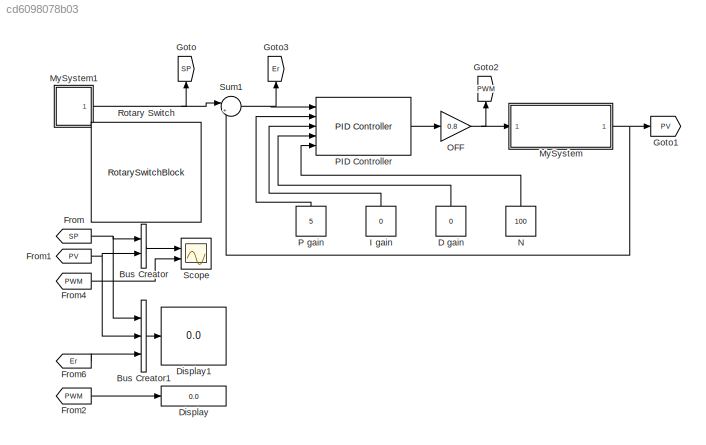
MODEL slx_cd6098078b03
KIND model
CONFIG AbsTol = auto
CONFIG EnableMultiTasking = on
CONFIG FixedStep = Ts
CONFIG InitFcn = Ts=0.025;\nMAX = 110;\nMIN = 0;
CONFIG MaxStep = auto
CONFIG MinStep = auto
CONFIG RelTol = 1e-3
CONFIG SampleTimeConstraint = Unconstrained
CONFIG Solver = ode5
CONFIG SolverName = ode5
CONFIG StartTime = 0.0
CONFIG StopTime = inf
BLOCK [BusCreator] Bus Creator
  DisplayOption = bar
  InheritFromInputs = on
  Inputs = 2
  Ports = [2, 1]
BLOCK [BusCreator] Bus Creator1
  DisplayOption = bar
  InheritFromInputs = on
  Inputs = 3
  Ports = [3, 1]
BLOCK [Constant] D gain
  SampleTime = Ts
  Value = 0
BLOCK [Display] Display
  Decimation = 1
  Ports = [1]
BLOCK [Display] Display1
  Decimation = 1
  Ports = [1]
BLOCK [From] From
  GotoTag = SP
BLOCK [From] From1
  GotoTag = PV
BLOCK [From] From2
  GotoTag = PWM
BLOCK [From] From4
  GotoTag = PWM
BLOCK [From] From6
  GotoTag = Er
BLOCK [Goto] Goto
  GotoTag = SP
BLOCK [Goto] Goto1
  GotoTag = PV
BLOCK [Goto] Goto2
  GotoTag = PWM
BLOCK [Goto] Goto3
  GotoTag = Er
BLOCK [Constant] I gain
  SampleTime = Ts
  Value = 0
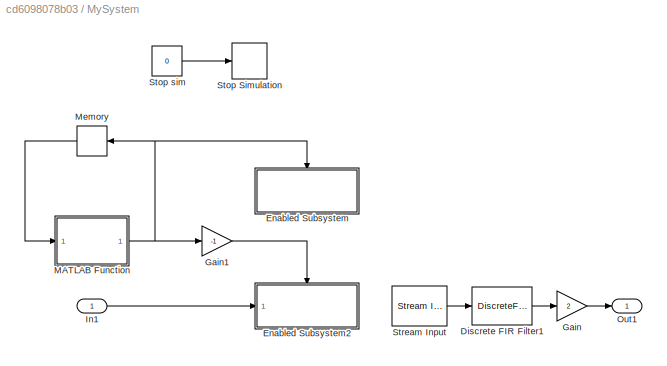
BLOCK [SubSystem] MySystem
  Description = sasd
  Ports = [1, 1]
  RequestExecContextInheritance = off
  ShowPortLabels = none
BLOCK [DiscreteFir] MySystem/Discrete FIR Filter1
  FilterStructure = Direct form symmetric
  InputPortMap = u0
  OutputPortMap = o0
  Ports = [1, 1]
  SampleTime = Ts
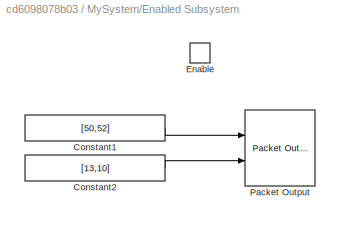
BLOCK [SubSystem] MySystem/Enabled Subsystem
  Ports = [0, 0, 1]
  RequestExecContextInheritance = off
  TreatAsAtomicUnit = on
BLOCK [Constant] MySystem/Enabled Subsystem/Constant1
  Value = [50,52]
BLOCK [Constant] MySystem/Enabled Subsystem/Constant2
  Value = [13,10]
BLOCK [EnablePort] MySystem/Enabled Subsystem/Enable
  Ports = []
BLOCK [Reference] MySystem/Enabled Subsystem/Packet Output  REF=sldrtlib/Packet Output
  AttributesFormatString = Serial Port [5]
  Ports = [2]
  SourceBlock = sldrtlib/Packet Output
  SourceProductBaseCode = WT
  SourceProductName = Simulink Desktop Real-Time
  SourceType = Simulink Desktop Real-Time Packet Output
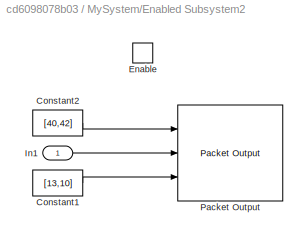
BLOCK [SubSystem] MySystem/Enabled Subsystem2
  Ports = [1, 0, 1]
  RequestExecContextInheritance = off
  TreatAsAtomicUnit = on
BLOCK [Constant] MySystem/Enabled Subsystem2/Constant1
  Value = [13,10]
BLOCK [Constant] MySystem/Enabled Subsystem2/Constant2
  Value = [40,42]
BLOCK [EnablePort] MySystem/Enabled Subsystem2/Enable
  Ports = []
BLOCK [Inport] MySystem/Enabled Subsystem2/In1
  IconDisplay = Port number
BLOCK [Reference] MySystem/Enabled Subsystem2/Packet Output  REF=sldrtlib/Packet Output
  AttributesFormatString = Serial Port [5]
  Ports = [3]
  SourceBlock = sldrtlib/Packet Output
  SourceProductBaseCode = WT
  SourceProductName = Simulink Desktop Real-Time
  SourceType = Simulink Desktop Real-Time Packet Output
BLOCK [Gain] MySystem/Gain
  Gain = 2
  OutDataTypeStr = Inherit: Inherit via internal rule
  ParamDataTypeStr = Inherit: Inherit via internal rule
  SaturateOnIntegerOverflow = off
BLOCK [Gain] MySystem/Gain1
  Gain = -1
  OutDataTypeStr = Inherit: Inherit via internal rule
  ParamDataTypeStr = Inherit: Inherit via internal rule
  SaturateOnIntegerOverflow = off
BLOCK [Inport] MySystem/In1
  IconDisplay = Port number
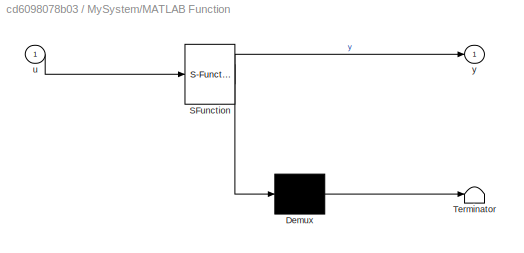
BLOCK [SubSystem] MySystem/MATLAB Function
  ErrorFcn = Stateflow.Translate.translate
  PermitHierarchicalResolution = ExplicitOnly
  Ports = [1, 1]
  RequestExecContextInheritance = off
  SFBlockType = MATLAB Function
  TreatAsAtomicUnit = on
BLOCK [Demux] MySystem/MATLAB Function/ Demux 
  Outputs = 1
  Ports = [1, 1]
BLOCK [S-Function] MySystem/MATLAB Function/ SFunction 
  EnableBusSupport = on
  FunctionName = sf_sfun
  PortCounts = [1 2]
  Ports = [1, 2]
  SFcnIsStateOwnerBlock = off
  SFunctionDeploymentMode = off
  Tag = Stateflow S-Function AeroPendulum 2
BLOCK [Terminator] MySystem/MATLAB Function/ Terminator 
BLOCK [Inport] MySystem/MATLAB Function/u
  IconDisplay = Port number
BLOCK [Outport] MySystem/MATLAB Function/y
  IconDisplay = Port number
BLOCK [Memory] MySystem/Memory
  InitialCondition = 20
BLOCK [Outport] MySystem/Out1
  IconDisplay = Port number
BLOCK [Stop] MySystem/Stop Simulation
BLOCK [Constant] MySystem/Stop sim
  Value = 0
BLOCK [Reference] MySystem/Stream Input  REF=sldrtlib/Stream Input
  AttributesFormatString = Serial Port [5]
  Ports = [0, 1]
  SourceBlock = sldrtlib/Stream Input
  SourceProductBaseCode = WT
  SourceProductName = Simulink Desktop Real-Time
  SourceType = Simulink Desktop Real-Time Stream Input
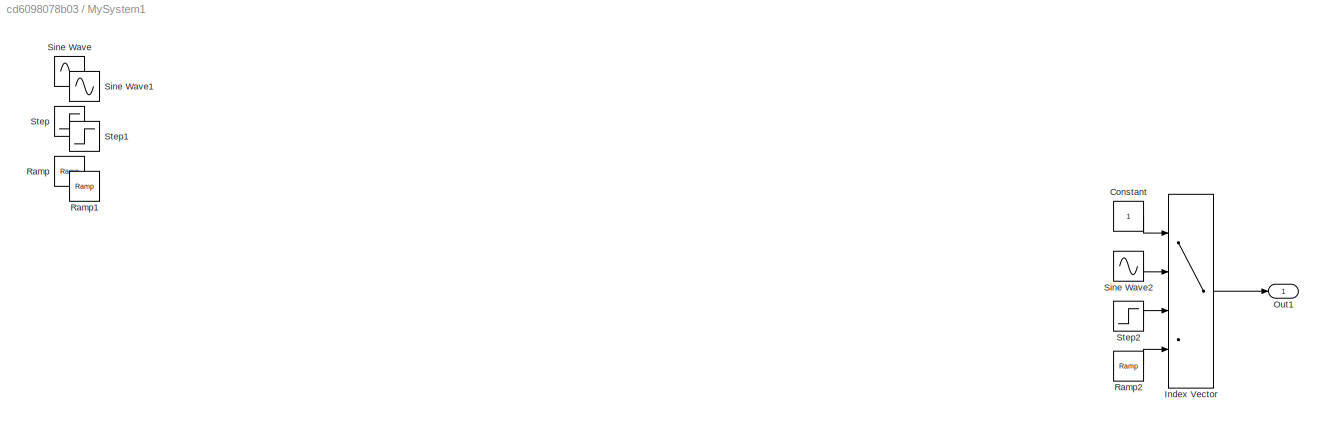
BLOCK [SubSystem] MySystem1
  Description = sasd
  Ports = [0, 1]
  RequestExecContextInheritance = off
  ShowPortLabels = none
BLOCK [Constant] MySystem1/Constant
BLOCK [MultiPortSwitch] MySystem1/Index Vector
  DataPortOrder = Zero-based contiguous
  InputSameDT = off
  Ports = [4, 1]
  SaturateOnIntegerOverflow = off
  zeroidx = on
BLOCK [Outport] MySystem1/Out1
  IconDisplay = Port number
BLOCK [Reference] MySystem1/Ramp  REF=simulink/Sources/Ramp
  Ports = [0, 1]
  SourceBlock = simulink/Sources/Ramp
  SourceProductBaseCode = SL
  SourceProductName = Simulink
  SourceType = Ramp
BLOCK [Reference] MySystem1/Ramp1  REF=simulink/Sources/Ramp
  Ports = [0, 1]
  SourceBlock = simulink/Sources/Ramp
  SourceProductBaseCode = SL
  SourceProductName = Simulink
  SourceType = Ramp
BLOCK [Reference] MySystem1/Ramp2  REF=simulink/Sources/Ramp
  Ports = [0, 1]
  SourceBlock = simulink/Sources/Ramp
  SourceProductBaseCode = SL
  SourceProductName = Simulink
  SourceType = Ramp
BLOCK [Sin] MySystem1/Sine Wave
  Amplitude = 10
  Bias = 45
  Frequency = 0.5
  Ports = [0, 1]
  SampleTime = 0
BLOCK [Sin] MySystem1/Sine Wave1
  Amplitude = 10
  Bias = 45
  Frequency = 0.5
  Ports = [0, 1]
  SampleTime = 0
BLOCK [Sin] MySystem1/Sine Wave2
  Amplitude = 10
  Bias = 45
  Frequency = 0.5
  Ports = [0, 1]
  SampleTime = 0
BLOCK [Step] MySystem1/Step
  SampleTime = 0
BLOCK [Step] MySystem1/Step1
  SampleTime = 0
BLOCK [Step] MySystem1/Step2
  SampleTime = 0
BLOCK [Constant] N
  SampleTime = Ts
  Value = 100
BLOCK [Gain] OFF
  Gain = 0.8
  OutDataTypeStr = double
  ParamDataTypeStr = Inherit: Inherit via internal rule
  SaturateOnIntegerOverflow = off
BLOCK [Constant] P gain
  SampleTime = Ts
  Value = 5
BLOCK [Reference] PID Controller  REF=simulink/Continuous/PID Controller
  Ports = [5, 1]
  SourceBlock = simulink/Continuous/PID Controller
  SourceProductBaseCode = SL
  SourceProductName = Simulink
  SourceType = PID 1dof
BLOCK [RotarySwitchBlock] Rotary Switch
  LabelPosition = Hide
BLOCK [Scope] Scope
  Floating = off
  NumInputPorts = 2
  Ports = [2]
  ScopeSpecificationString = Simulink.scopes.TimeScopeBlockCfg('CurrentConfiguration', extmgr.ConfigurationSet(extmgr.Configuration('Core','General UI',true),extmgr.Configuration('Core','Source UI',true),extmgr.Configuration('Sources','WiredSimulink',true,'DataLoggingSaveFormat','StructureWithTime','DataLoggingDecimation','1','DataLoggingDecimateData',true),extmgr.Configuration('Visuals','Time Domain',true,'SerializedDisplays...<+2271ch>
BLOCK [Sum] Sum1
  IconShape = round
  InputSameDT = off
  Inputs = |+-
  OutDataTypeStr = Inherit: Inherit via internal rule
  Ports = [2, 1]
  SaturateOnIntegerOverflow = off
LINE Bus Creator1:1 -> Display1:1
LINE Bus Creator:1 -> Scope:1
LINE D gain:1 -> PID Controller:4
NET From1:1 -> Bus Creator1:2, Bus Creator:2
LINE From2:1 -> Display:1
LINE From4:1 -> Scope:2
LINE From6:1 -> Bus Creator1:3
NET From:1 -> Bus Creator1:1, Bus Creator:1
LINE I gain:1 -> PID Controller:3
LINE MySystem/Discrete FIR Filter1:1 -> MySystem/Gain:1
LINE MySystem/Enabled Subsystem/Constant1:1 -> MySystem/Enabled Subsystem/Packet Output:1
LINE MySystem/Enabled Subsystem/Constant2:1 -> MySystem/Enabled Subsystem/Packet Output:2
LINE MySystem/Enabled Subsystem2/Constant1:1 -> MySystem/Enabled Subsystem2/Packet Output:3
LINE MySystem/Enabled Subsystem2/Constant2:1 -> MySystem/Enabled Subsystem2/Packet Output:1
LINE MySystem/Enabled Subsystem2/In1:1 -> MySystem/Enabled Subsystem2/Packet Output:2
LINE MySystem/Gain1:1 -> MySystem/Enabled Subsystem2:enable
LINE MySystem/Gain:1 -> MySystem/Out1:1
LINE MySystem/In1:1 -> MySystem/Enabled Subsystem2:1
NET MySystem/MATLAB Function:1 -> MySystem/Enabled Subsystem:enable, MySystem/Gain1:1, MySystem/Memory:1
LINE MySystem/Memory:1 -> MySystem/MATLAB Function:1
LINE MySystem/Stop sim:1 -> MySystem/Stop Simulation:1
LINE MySystem/Stream Input:1 -> MySystem/Discrete FIR Filter1:1
LINE MySystem1/Constant:1 -> MySystem1/Index Vector:1
LINE MySystem1/Index Vector:1 -> MySystem1/Out1:1
LINE MySystem1/Ramp2:1 -> MySystem1/Index Vector:4
LINE MySystem1/Sine Wave2:1 -> MySystem1/Index Vector:2
LINE MySystem1/Step2:1 -> MySystem1/Index Vector:3
NET MySystem1:1 -> Goto:1, Sum1:1
NET MySystem:1 -> Goto1:1, Sum1:2
LINE N:1 -> PID Controller:5
NET OFF:1 -> Goto2:1, MySystem:1
LINE P gain:1 -> PID Controller:2
LINE PID Controller:1 -> OFF:1
NET Sum1:1 -> Goto3:1, PID Controller:1
note: NET lines group one-source signal fan-out (src -> all destinations, sorted); 1:1 wires keep LINE
CHART MySystem/MATLAB Function states=1 transitions=1
  STATE_LABEL 'eML_blk_kernel()'
  STATE_LABEL 'SCRIPT:\nfunction y = fcn(u)\n%#codegen\ny=u;\nif u==20\n    y=-20;\nelseif u==-20\n    y=20;\nend\n'
